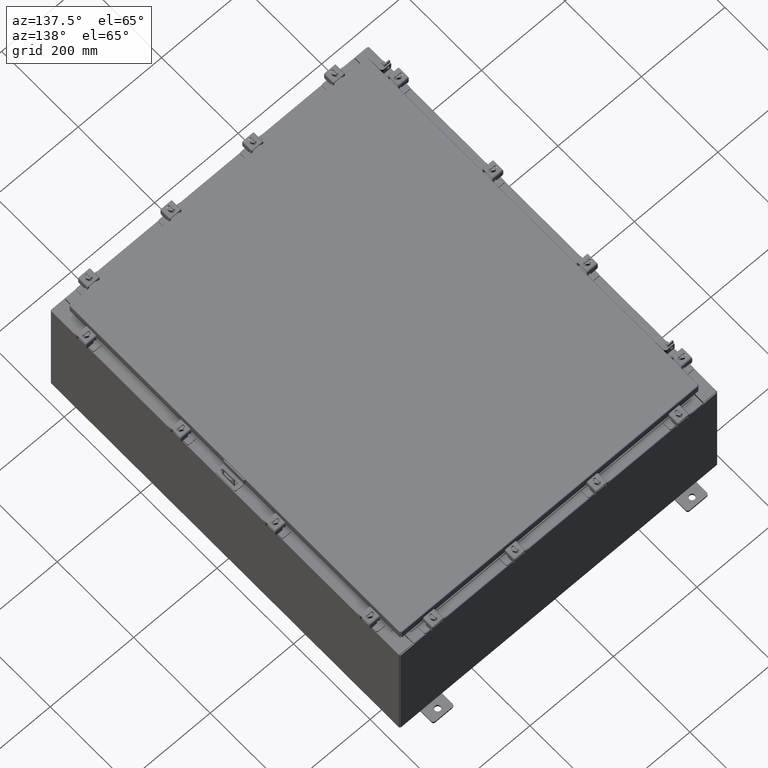
[diagram: clean part render]
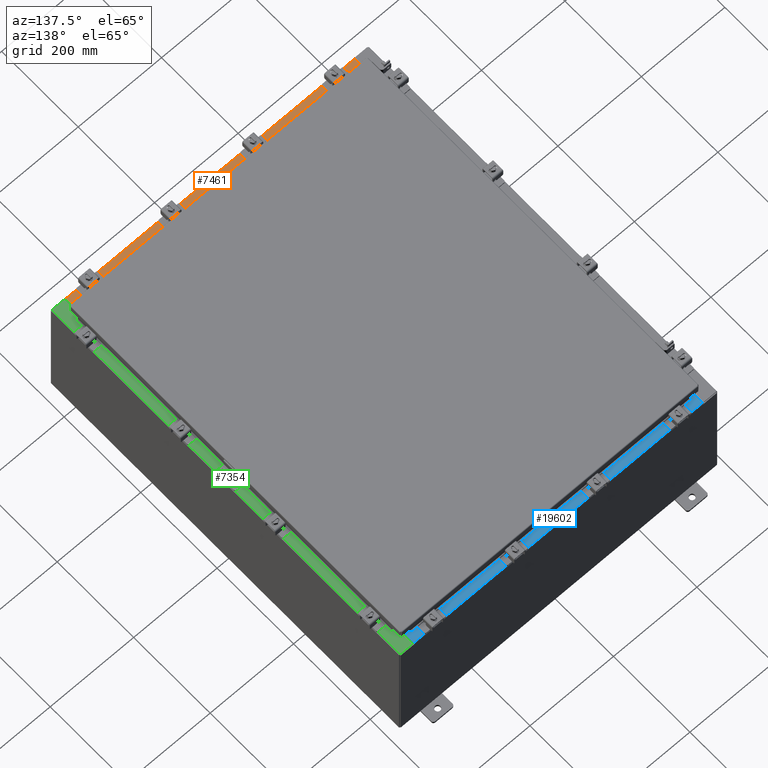
[diagram: same view with three faces highlighted in distinct colors, each labeled with its STEP entity id]
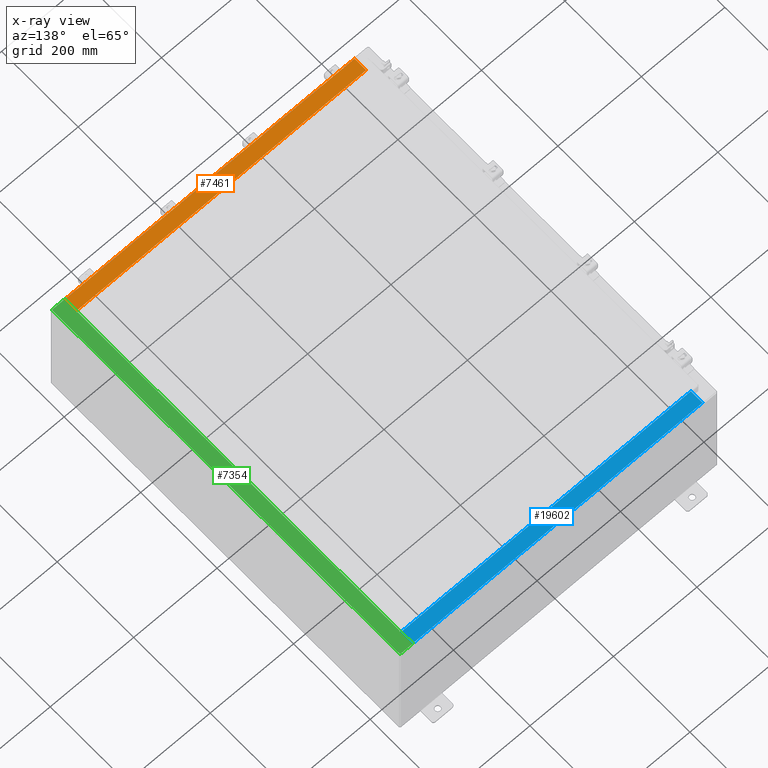
[diagram: x-ray of the same camera — body ghosted, the three highlighted faces saturated]
A machine part, auxiliary view with three faces highlighted in distinct colors.
The next image is the same camera in x-ray (body ghosted, the three faces saturated) — at least one of them is partly hidden behind the body in this view.
Their STEP definitions:

[orange] entity #7461 — the highlighted planar face has unit normal (-0, -0, 1).
#1102 = CARTESIAN_POINT ( 'NONE',  ( 13.63720000000000400, -1.300299999999999800, 6.000000000000003600 ) ) ;
#2036 = CARTESIAN_POINT ( 'NONE',  ( -13.63719999999999800, -0.07469999999999973900, 5.999999999999999100 ) ) ;
#2183 = VERTEX_POINT ( 'NONE', #21953 ) ;
#2336 = VECTOR ( 'NONE', #7752, 39.37007874015748100 ) ;
#2915 = LINE ( 'NONE', #2036, #2336 ) ;
#3112 = VECTOR ( 'NONE', #11822, 39.37007874015748100 ) ;
#3343 = ORIENTED_EDGE ( 'NONE', *, *, #19169, .F. ) ;
#4075 = EDGE_CURVE ( 'NONE', #8704, #22816, #17580, .T. ) ;
#4386 = DIRECTION ( 'NONE',  ( 0.0000000000000000000, 3.566381192773190000E-015, 1.000000000000000000 ) ) ;
#4458 = VECTOR ( 'NONE', #16337, 39.37007874015748100 ) ;
#4766 = FACE_OUTER_BOUND ( 'NONE', #7080, .T. ) ;
#7080 = EDGE_LOOP ( 'NONE', ( #3343, #21733, #9126, #20238 ) ) ;
#7128 = CARTESIAN_POINT ( 'NONE',  ( 13.63720000000000400, -0.08769999999999937600, 5.999999999999999100 ) ) ;
#7461 = ADVANCED_FACE ( 'NONE', ( #4766 ), #15796, .T. ) ;
#7752 = DIRECTION ( 'NONE',  ( -0.0000000000000000000, 1.000000000000000000, -3.566381192773190000E-015 ) ) ;
#8563 = EDGE_CURVE ( 'NONE', #8704, #15099, #19042, .T. ) ;
#8704 = VERTEX_POINT ( 'NONE', #7128 ) ;
#9126 = ORIENTED_EDGE ( 'NONE', *, *, #8563, .F. ) ;
#10251 = CARTESIAN_POINT ( 'NONE',  ( -3.513669507588266700E-018, -0.08769999999999972300, 5.999999999999999100 ) ) ;
#11822 = DIRECTION ( 'NONE',  ( -1.000000000000000000, 0.0000000000000000000, 0.0000000000000000000 ) ) ;
#12504 = VECTOR ( 'NONE', #17915, 39.37007874015748100 ) ;
#13412 = AXIS2_PLACEMENT_3D ( 'NONE', #21378, #4386, #17701 ) ;
#13461 = EDGE_CURVE ( 'NONE', #15099, #2183, #18320, .T. ) ;
#15099 = VERTEX_POINT ( 'NONE', #23766 ) ;
#15796 = PLANE ( 'NONE',  #13412 ) ;
#16337 = DIRECTION ( 'NONE',  ( -0.0000000000000000000, -1.000000000000000000, 3.566381192773190000E-015 ) ) ;
#17580 = LINE ( 'NONE', #10251, #12504 ) ;
#17701 = DIRECTION ( 'NONE',  ( 0.0000000000000000000, -1.000000000000000000, 3.566381192773190000E-015 ) ) ;
#17915 = DIRECTION ( 'NONE',  ( -1.000000000000000000, 4.006464660875052000E-017, -1.428858021605520200E-031 ) ) ;
#18320 = LINE ( 'NONE', #23148, #3112 ) ;
#19042 = LINE ( 'NONE', #1102, #4458 ) ;
#19169 = EDGE_CURVE ( 'NONE', #2183, #22816, #2915, .T. ) ;
#20238 = ORIENTED_EDGE ( 'NONE', *, *, #4075, .T. ) ;
#21378 = CARTESIAN_POINT ( 'NONE',  ( 0.0000000000000000000, 2.139269213755056400E-014, 5.999999999999999100 ) ) ;
#21733 = ORIENTED_EDGE ( 'NONE', *, *, #13461, .F. ) ;
#21953 = CARTESIAN_POINT ( 'NONE',  ( -13.63719999999999800, -1.287299999999999200, 6.000000000000003600 ) ) ;
#22816 = VERTEX_POINT ( 'NONE', #22982 ) ;
#22982 = CARTESIAN_POINT ( 'NONE',  ( -13.63719999999999800, -0.08769999999999972300, 5.999999999999999100 ) ) ;
#23148 = CARTESIAN_POINT ( 'NONE',  ( 13.63720000000000400, -1.287299999999999900, 6.000000000000003600 ) ) ;
#23766 = CARTESIAN_POINT ( 'NONE',  ( 13.63720000000000400, -1.287299999999999900, 6.000000000000003600 ) ) ;

[blue] entity #19602 — the highlighted planar face has unit normal (0, 0, 1).
#363 = CARTESIAN_POINT ( 'NONE',  ( -3.513669507588266700E-018, -0.08769999999999972300, 5.999999999999999100 ) ) ;
#1754 = LINE ( 'NONE', #2556, #11894 ) ;
#2374 = CARTESIAN_POINT ( 'NONE',  ( 13.63720000000000400, -0.08769999999999937600, 5.999999999999999100 ) ) ;
#2485 = EDGE_CURVE ( 'NONE', #4794, #5580, #6551, .T. ) ;
#2556 = CARTESIAN_POINT ( 'NONE',  ( 13.63720000000000400, -1.300299999999999800, 6.000000000000003600 ) ) ;
#2702 = ORIENTED_EDGE ( 'NONE', *, *, #10273, .T. ) ;
#2866 = DIRECTION ( 'NONE',  ( -0.0000000000000000000, 1.000000000000000000, -3.566381192773190000E-015 ) ) ;
#4460 = DIRECTION ( 'NONE',  ( -0.0000000000000000000, -1.000000000000000000, 3.566381192773190000E-015 ) ) ;
#4735 = CARTESIAN_POINT ( 'NONE',  ( 13.63720000000000400, -1.287299999999999900, 6.000000000000003600 ) ) ;
#4794 = VERTEX_POINT ( 'NONE', #4735 ) ;
#5567 = CARTESIAN_POINT ( 'NONE',  ( -13.63719999999999800, -0.08769999999999972300, 5.999999999999999100 ) ) ;
#5580 = VERTEX_POINT ( 'NONE', #11516 ) ;
#6551 = LINE ( 'NONE', #20236, #16105 ) ;
#6781 = VECTOR ( 'NONE', #13651, 39.37007874015748100 ) ;
#7041 = EDGE_LOOP ( 'NONE', ( #9709, #9315, #13040, #2702 ) ) ;
#7229 = DIRECTION ( 'NONE',  ( 0.0000000000000000000, -1.000000000000000000, 3.566381192773190000E-015 ) ) ;
#7403 = LINE ( 'NONE', #16200, #17577 ) ;
#8875 = DIRECTION ( 'NONE',  ( -1.000000000000000000, 0.0000000000000000000, 0.0000000000000000000 ) ) ;
#9151 = FACE_OUTER_BOUND ( 'NONE', #7041, .T. ) ;
#9315 = ORIENTED_EDGE ( 'NONE', *, *, #2485, .F. ) ;
#9709 = ORIENTED_EDGE ( 'NONE', *, *, #16791, .F. ) ;
#9943 = AXIS2_PLACEMENT_3D ( 'NONE', #10998, #18652, #7229 ) ;
#10273 = EDGE_CURVE ( 'NONE', #20646, #18363, #11868, .T. ) ;
#10998 = CARTESIAN_POINT ( 'NONE',  ( 0.0000000000000000000, 2.139269213755056400E-014, 5.999999999999999100 ) ) ;
#11516 = CARTESIAN_POINT ( 'NONE',  ( -13.63719999999999800, -1.287299999999999200, 6.000000000000003600 ) ) ;
#11868 = LINE ( 'NONE', #363, #6781 ) ;
#11894 = VECTOR ( 'NONE', #4460, 39.37007874015748100 ) ;
#13040 = ORIENTED_EDGE ( 'NONE', *, *, #18629, .F. ) ;
#13651 = DIRECTION ( 'NONE',  ( -1.000000000000000000, 4.006464660875052000E-017, -1.428858021605520200E-031 ) ) ;
#14840 = PLANE ( 'NONE',  #9943 ) ;
#16105 = VECTOR ( 'NONE', #8875, 39.37007874015748100 ) ;
#16200 = CARTESIAN_POINT ( 'NONE',  ( -13.63719999999999800, -0.07469999999999973900, 5.999999999999999100 ) ) ;
#16791 = EDGE_CURVE ( 'NONE', #5580, #18363, #7403, .T. ) ;
#17577 = VECTOR ( 'NONE', #2866, 39.37007874015748100 ) ;
#18363 = VERTEX_POINT ( 'NONE', #5567 ) ;
#18629 = EDGE_CURVE ( 'NONE', #20646, #4794, #1754, .T. ) ;
#18652 = DIRECTION ( 'NONE',  ( 0.0000000000000000000, 3.566381192773190000E-015, 1.000000000000000000 ) ) ;
#19602 = ADVANCED_FACE ( 'NONE', ( #9151 ), #14840, .T. ) ;
#20236 = CARTESIAN_POINT ( 'NONE',  ( 13.63720000000000400, -1.287299999999999900, 6.000000000000003600 ) ) ;
#20646 = VERTEX_POINT ( 'NONE', #2374 ) ;

[green] entity #7354 — the highlighted planar face has unit normal (-0, 0, -1).
#163 = EDGE_CURVE ( 'NONE', #9894, #12109, #16818, .T. ) ;
#356 = ORIENTED_EDGE ( 'NONE', *, *, #1143, .F. ) ;
#441 = ORIENTED_EDGE ( 'NONE', *, *, #11400, .F. ) ;
#628 = LINE ( 'NONE', #11141, #10128 ) ;
#644 = CARTESIAN_POINT ( 'NONE',  ( 13.75005000000004300, -16.59375000000000000, 11.92530000000000900 ) ) ;
#657 = AXIS2_PLACEMENT_3D ( 'NONE', #17295, #7776, #21068 ) ;
#860 = CARTESIAN_POINT ( 'NONE',  ( 13.69970000000004100, -17.92530000000000000, 11.92530000000000900 ) ) ;
#907 = LINE ( 'NONE', #14665, #10422 ) ;
#1137 = DIRECTION ( 'NONE',  ( 1.000000000000000000, 0.0000000000000000000, -7.132762385546384700E-015 ) ) ;
#1143 = EDGE_CURVE ( 'NONE', #2383, #23217, #6915, .T. ) ;
#2383 = VERTEX_POINT ( 'NONE', #13032 ) ;
#2707 = DIRECTION ( 'NONE',  ( -0.0000000000000000000, 1.000000000000000000, -0.0000000000000000000 ) ) ;
#3093 = CIRCLE ( 'NONE', #23348, 0.01867499999999949400 ) ;
#3206 = EDGE_CURVE ( 'NONE', #23217, #10553, #14024, .T. ) ;
#3251 = DIRECTION ( 'NONE',  ( -1.000000000000000000, 0.0000000000000000000, 7.132762385546384700E-015 ) ) ;
#3264 = CARTESIAN_POINT ( 'NONE',  ( 13.71270000000004300, 16.59375000000000000, 11.92530000000000900 ) ) ;
#3434 = DIRECTION ( 'NONE',  ( -1.000000000000000000, 0.0000000000000000000, 0.0000000000000000000 ) ) ;
#3971 = PLANE ( 'NONE',  #657 ) ;
#4249 = CARTESIAN_POINT ( 'NONE',  ( 13.69970000000004100, -16.63110000000000400, 11.92530000000000900 ) ) ;
#4637 = CARTESIAN_POINT ( 'NONE',  ( 13.75005000000004300, -16.63110000000000000, 11.92530000000000900 ) ) ;
#4883 = CARTESIAN_POINT ( 'NONE',  ( 13.75005000000004300, 16.59375000000000000, 11.92530000000000900 ) ) ;
#5196 = DIRECTION ( 'NONE',  ( 1.000000000000000000, 0.0000000000000000000, 0.0000000000000000000 ) ) ;
#5714 = VERTEX_POINT ( 'NONE', #4249 ) ;
#5834 = CARTESIAN_POINT ( 'NONE',  ( 13.75005000000004300, 16.61242500000000200, 11.92530000000000900 ) ) ;
#6344 = VERTEX_POINT ( 'NONE', #11886 ) ;
#6385 = AXIS2_PLACEMENT_3D ( 'NONE', #5834, #19135, #7730 ) ;
#6698 = EDGE_CURVE ( 'NONE', #22381, #12109, #14634, .T. ) ;
#6713 = LINE ( 'NONE', #6779, #11202 ) ;
#6735 = EDGE_LOOP ( 'NONE', ( #13300, #16530, #23247, #21315, #21410, #11230, #21589, #13327, #19195, #356, #441, #8059 ) ) ;
#6779 = CARTESIAN_POINT ( 'NONE',  ( 8.531902765212701500E-014, -17.92530000000000000, 11.92530000000010800 ) ) ;
#6915 = LINE ( 'NONE', #12212, #16481 ) ;
#7199 = EDGE_CURVE ( 'NONE', #5714, #9152, #628, .T. ) ;
#7354 = ADVANCED_FACE ( 'NONE', ( #22290 ), #3971, .F. ) ;
#7415 = CIRCLE ( 'NONE', #6385, 0.01867499999999949400 ) ;
#7730 = DIRECTION ( 'NONE',  ( 1.000000000000000000, 0.0000000000000000000, 0.0000000000000000000 ) ) ;
#7776 = DIRECTION ( 'NONE',  ( -7.132762385546384700E-015, 0.0000000000000000000, -1.000000000000000000 ) ) ;
#8059 = ORIENTED_EDGE ( 'NONE', *, *, #23003, .F. ) ;
#8227 = EDGE_CURVE ( 'NONE', #13846, #9894, #907, .T. ) ;
#8436 = EDGE_CURVE ( 'NONE', #10553, #22381, #7415, .T. ) ;
#8526 = CARTESIAN_POINT ( 'NONE',  ( 13.75005000000004300, -16.61242500000000200, 11.92530000000000900 ) ) ;
#8540 = DIRECTION ( 'NONE',  ( 0.0000000000000000000, -1.000000000000000000, 0.0000000000000000000 ) ) ;
#8858 = DIRECTION ( 'NONE',  ( 0.0000000000000000000, -1.000000000000000000, 0.0000000000000000000 ) ) ;
#9152 = VERTEX_POINT ( 'NONE', #4637 ) ;
#9645 = LINE ( 'NONE', #20220, #19153 ) ;
#9894 = VERTEX_POINT ( 'NONE', #10502 ) ;
#10128 = VECTOR ( 'NONE', #24362, 39.37007874015748100 ) ;
#10422 = VECTOR ( 'NONE', #3251, 39.37007874015748100 ) ;
#10444 = DIRECTION ( 'NONE',  ( 1.000000000000000000, 0.0000000000000000000, 0.0000000000000000000 ) ) ;
#10458 = CARTESIAN_POINT ( 'NONE',  ( 13.69970000000004100, 0.0000000000000000000, 11.92530000000000900 ) ) ;
#10502 = CARTESIAN_POINT ( 'NONE',  ( 13.69970000000004100, 17.92530000000000000, 11.92530000000000900 ) ) ;
#10553 = VERTEX_POINT ( 'NONE', #4883 ) ;
#10929 = CARTESIAN_POINT ( 'NONE',  ( 13.75005000000004300, -16.59375000000000000, 11.92530000000000900 ) ) ;
#10952 = CARTESIAN_POINT ( 'NONE',  ( 13.71270000000004300, 16.59375000000000000, 11.92530000000000900 ) ) ;
#11141 = CARTESIAN_POINT ( 'NONE',  ( 13.69970000000004100, -16.63110000000000400, 11.92530000000000900 ) ) ;
#11202 = VECTOR ( 'NONE', #1137, 39.37007874015748100 ) ;
#11230 = ORIENTED_EDGE ( 'NONE', *, *, #163, .T. ) ;
#11400 = EDGE_CURVE ( 'NONE', #18614, #2383, #20696, .T. ) ;
#11748 = VECTOR ( 'NONE', #8540, 39.37007874015748100 ) ;
#11886 = CARTESIAN_POINT ( 'NONE',  ( 14.91230000000003900, -17.92530000000000000, 11.92530000000000000 ) ) ;
#12109 = VERTEX_POINT ( 'NONE', #19860 ) ;
#12212 = CARTESIAN_POINT ( 'NONE',  ( 13.71270000000004300, -16.59375000000000000, 11.92530000000000900 ) ) ;
#12968 = LINE ( 'NONE', #14478, #18028 ) ;
#13032 = CARTESIAN_POINT ( 'NONE',  ( 13.71270000000004300, -16.59375000000000000, 11.92530000000000900 ) ) ;
#13218 = EDGE_CURVE ( 'NONE', #13846, #6344, #12968, .T. ) ;
#13300 = ORIENTED_EDGE ( 'NONE', *, *, #7199, .F. ) ;
#13327 = ORIENTED_EDGE ( 'NONE', *, *, #8436, .F. ) ;
#13846 = VERTEX_POINT ( 'NONE', #16554 ) ;
#14024 = LINE ( 'NONE', #3264, #23498 ) ;
#14478 = CARTESIAN_POINT ( 'NONE',  ( 14.91230000000003900, -17.92530000000000000, 11.92530000000000000 ) ) ;
#14634 = LINE ( 'NONE', #18500, #19080 ) ;
#14665 = CARTESIAN_POINT ( 'NONE',  ( 8.531902765212701500E-014, 17.92530000000000000, 11.92530000000010800 ) ) ;
#15087 = VECTOR ( 'NONE', #3434, 39.37007874015748100 ) ;
#16399 = DIRECTION ( 'NONE',  ( -0.0000000000000000000, -1.000000000000000000, -0.0000000000000000000 ) ) ;
#16481 = VECTOR ( 'NONE', #2707, 39.37007874015748100 ) ;
#16530 = ORIENTED_EDGE ( 'NONE', *, *, #23159, .T. ) ;
#16554 = CARTESIAN_POINT ( 'NONE',  ( 14.91230000000003900, 17.92530000000000000, 11.92530000000000000 ) ) ;
#16818 = LINE ( 'NONE', #10458, #11748 ) ;
#17295 = CARTESIAN_POINT ( 'NONE',  ( 8.531902765212701500E-014, 0.0000000000000000000, 11.92530000000010800 ) ) ;
#18028 = VECTOR ( 'NONE', #16399, 39.37007874015748100 ) ;
#18155 = CARTESIAN_POINT ( 'NONE',  ( 13.75005000000004300, 16.63110000000000000, 11.92530000000000900 ) ) ;
#18500 = CARTESIAN_POINT ( 'NONE',  ( 13.75005000000004300, 16.63110000000000000, 11.92530000000000900 ) ) ;
#18614 = VERTEX_POINT ( 'NONE', #644 ) ;
#19080 = VECTOR ( 'NONE', #20391, 39.37007874015748100 ) ;
#19135 = DIRECTION ( 'NONE',  ( 7.132762385546384700E-015, 0.0000000000000000000, 1.000000000000000000 ) ) ;
#19153 = VECTOR ( 'NONE', #8858, 39.37007874015748100 ) ;
#19195 = ORIENTED_EDGE ( 'NONE', *, *, #3206, .F. ) ;
#19860 = CARTESIAN_POINT ( 'NONE',  ( 13.69970000000004100, 16.63110000000000400, 11.92530000000000900 ) ) ;
#20220 = CARTESIAN_POINT ( 'NONE',  ( 13.69970000000004100, 0.0000000000000000000, 11.92530000000000900 ) ) ;
#20391 = DIRECTION ( 'NONE',  ( -1.000000000000000000, 4.340572780399910900E-014, 0.0000000000000000000 ) ) ;
#20696 = LINE ( 'NONE', #10929, #15087 ) ;
#20787 = EDGE_CURVE ( 'NONE', #23552, #6344, #6713, .T. ) ;
#21068 = DIRECTION ( 'NONE',  ( -1.000000000000000000, 0.0000000000000000000, 7.132762385546384700E-015 ) ) ;
#21315 = ORIENTED_EDGE ( 'NONE', *, *, #13218, .F. ) ;
#21410 = ORIENTED_EDGE ( 'NONE', *, *, #8227, .T. ) ;
#21589 = ORIENTED_EDGE ( 'NONE', *, *, #6698, .F. ) ;
#21797 = DIRECTION ( 'NONE',  ( 7.132762385546384700E-015, 0.0000000000000000000, 1.000000000000000000 ) ) ;
#22290 = FACE_OUTER_BOUND ( 'NONE', #6735, .T. ) ;
#22381 = VERTEX_POINT ( 'NONE', #18155 ) ;
#23003 = EDGE_CURVE ( 'NONE', #9152, #18614, #3093, .T. ) ;
#23159 = EDGE_CURVE ( 'NONE', #5714, #23552, #9645, .T. ) ;
#23217 = VERTEX_POINT ( 'NONE', #10952 ) ;
#23247 = ORIENTED_EDGE ( 'NONE', *, *, #20787, .T. ) ;
#23348 = AXIS2_PLACEMENT_3D ( 'NONE', #8526, #21797, #10444 ) ;
#23498 = VECTOR ( 'NONE', #5196, 39.37007874015748100 ) ;
#23552 = VERTEX_POINT ( 'NONE', #860 ) ;
#24362 = DIRECTION ( 'NONE',  ( 1.000000000000000000, 4.340572780399910900E-014, 0.0000000000000000000 ) ) ;